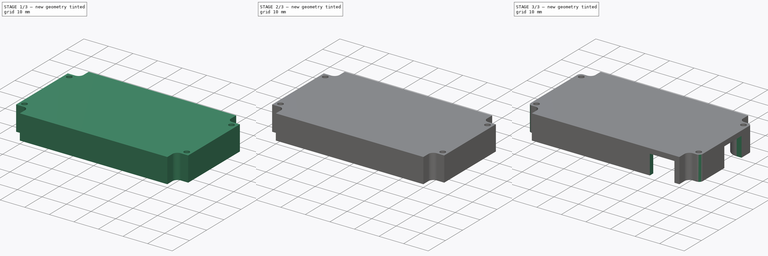
[diagram: build sequence overview — one tinted view per stage of 3, left to right]
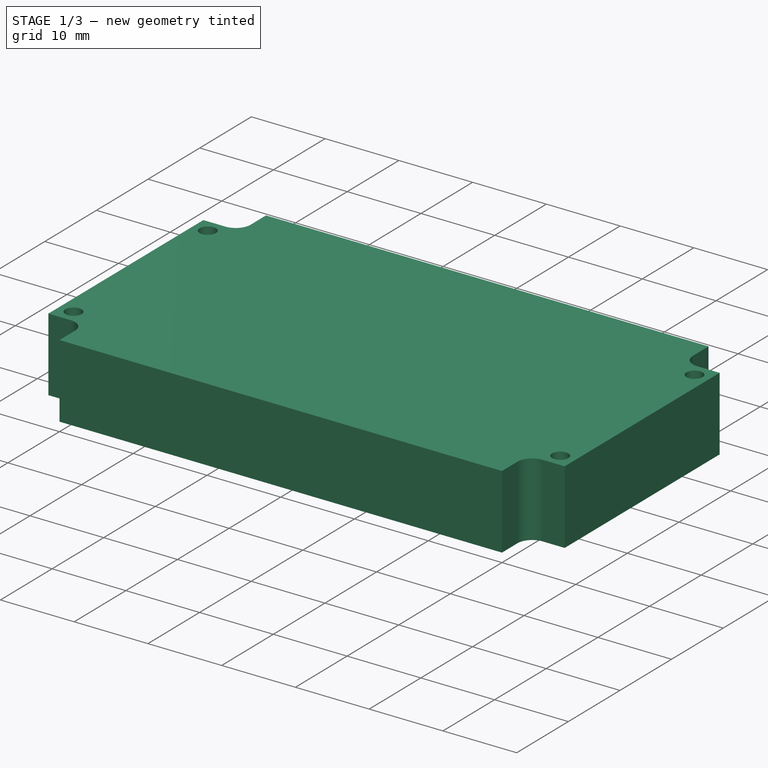
[diagram: stage 1 of 3 — iso view after this stage's code; geometry added in this stage tinted green]
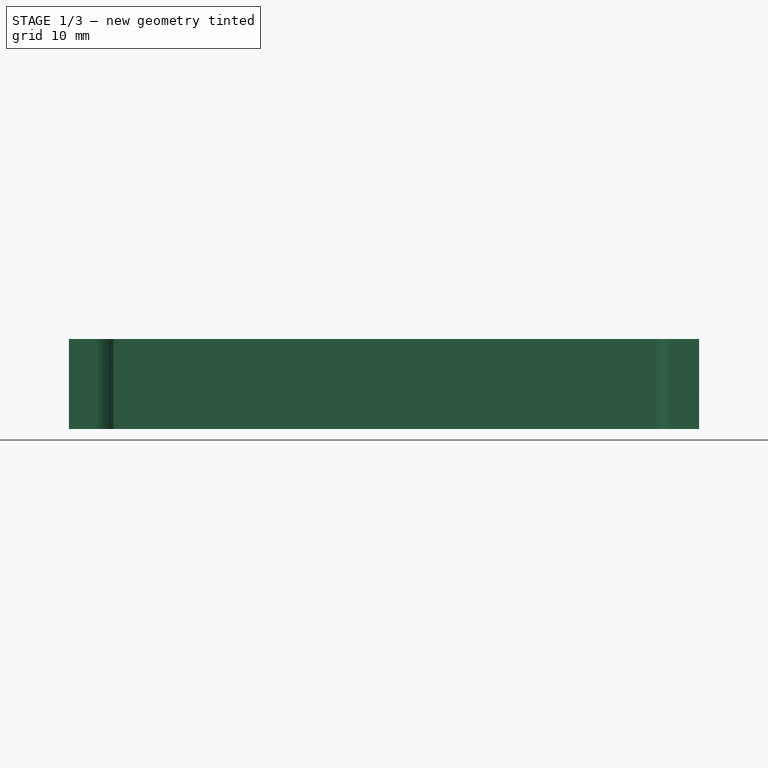
[diagram: stage 1 of 3 — front view after this stage's code; geometry added in this stage tinted green]
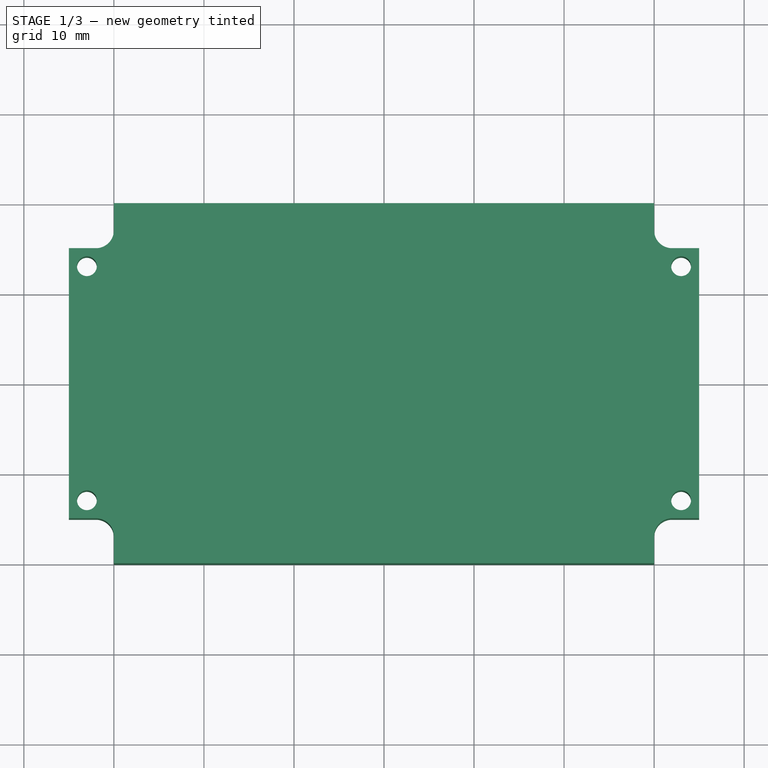
[diagram: stage 1 of 3 — top view after this stage's code; geometry added in this stage tinted green]
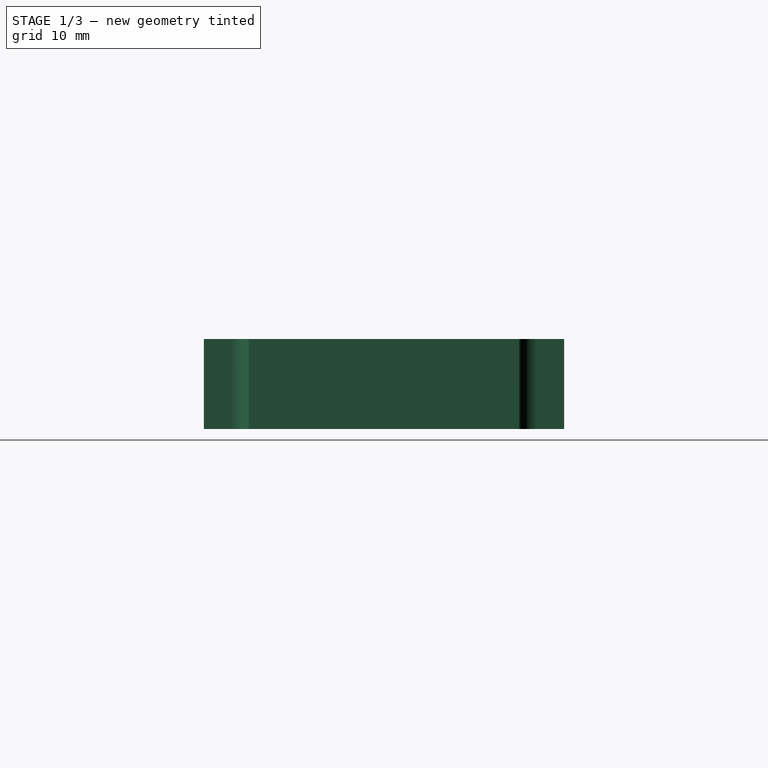
[diagram: stage 1 of 3 — right view after this stage's code; geometry added in this stage tinted green]
FCSTD DOCUMENT  (FreeCAD 0.19R)
Label: PCB-cover
License: All rights reserved
LicenseURL: http://en.wikipedia.org/wiki/All_rights_reserved
objects: Sketcher::SketchObject×4, PartDesign::Pocket×2, PartDesign::Pad×1, PartDesign::Hole×1, PartDesign::Fillet×1, PartDesign::Body×1
note: 15 computed .brp shape members not serialized (recipe doc carries the construction recipe); baked Part::Feature solids carry a one-line shape summary decoded from their .brp

FEATURE [Sketcher::SketchObject] Sketch002
  FullyConstrained = true
  MapMode = 5
  Support = -> [XY_Plane]
  sketch-geometry (8):
    g0: LineSegment StartX=-33 StartY=13 StartZ=0 EndX=33 EndY=13 EndZ=0
    g1: LineSegment StartX=33 StartY=13 StartZ=0 EndX=33 EndY=-13 EndZ=0
    g2: LineSegment StartX=33 StartY=-13 StartZ=0 EndX=-33 EndY=-13 EndZ=0
    g3: LineSegment StartX=-33 StartY=-13 StartZ=0 EndX=-33 EndY=13 EndZ=0
    g4: Circle CenterX=33 CenterY=13 CenterZ=0 NormalX=0 NormalY=0 NormalZ=1 AngleXU=0 Radius=1
    g5: Circle CenterX=33 CenterY=-13 CenterZ=0 NormalX=0 NormalY=0 NormalZ=1 AngleXU=0 Radius=1
    g6: Circle CenterX=-33 CenterY=-13 CenterZ=0 NormalX=0 NormalY=0 NormalZ=1 AngleXU=0 Radius=1
    g7: Circle CenterX=-33 CenterY=13 CenterZ=0 NormalX=0 NormalY=0 NormalZ=1 AngleXU=0 Radius=1
  constraints (18):
    c: Coincident(g0,g1)
    c: Coincident(g1,g2)
    c: Coincident(g2,g3)
    c: Coincident(g3,g0)
    c: Horizontal(g2)
    c: Vertical(g3)
    c: Symmetric(g1,g0,g-1)
    c: Symmetric(g0,g0,g-2)
    c: DistanceY(g1,g1) = 26
    c: DistanceX(g0,g0) = 66
    c: Diameter(g7) = 2
    c: Equal(g7,g6)
    c: Equal(g7,g5)
    c: Equal(g7,g4)
    c: Coincident(g7,g0)
    c: Coincident(g6,g2)
    c: Coincident(g4,g0)
    c: Coincident(g5,g1)
FEATURE [Sketcher::SketchObject] Sketch
  FullyConstrained = false
  MapMode = 5
  Support = -> [XY_Plane]
  sketch-geometry (20):
    g0: LineSegment StartX=-35 StartY=20 StartZ=0 EndX=35 EndY=20 EndZ=0
    g1: LineSegment StartX=35 StartY=20 StartZ=0 EndX=35 EndY=-20 EndZ=0
    g2: LineSegment StartX=35 StartY=-20 StartZ=0 EndX=-35 EndY=-20 EndZ=0
    g3: LineSegment StartX=-35 StartY=-20 StartZ=0 EndX=-35 EndY=20 EndZ=0
    g4: ArcOfCircle CenterX=-32 CenterY=-17 CenterZ=0 NormalX=0 NormalY=0 NormalZ=1 AngleXU=0 Radius=2 StartAngle=0 EndAngle=1.5708
    g5: ArcOfCircle CenterX=-32 CenterY=17 CenterZ=0 NormalX=0 NormalY=0 NormalZ=1 AngleXU=0 Radius=2 StartAngle=4.71239 EndAngle=6.28319
    g6: ArcOfCircle CenterX=32 CenterY=17 CenterZ=0 NormalX=0 NormalY=0 NormalZ=1 AngleXU=0 Radius=2 StartAngle=3.14159 EndAngle=4.71239
    g7: ArcOfCircle CenterX=32 CenterY=-17 CenterZ=0 NormalX=0 NormalY=0 NormalZ=1 AngleXU=0 Radius=2 StartAngle=1.5708 EndAngle=3.14159
    g8: LineSegment StartX=30 StartY=20 StartZ=0 EndX=-30 EndY=20 EndZ=0
    g9: LineSegment StartX=-30 StartY=20 StartZ=0 EndX=-30 EndY=17 EndZ=0
    g10: LineSegment StartX=30 StartY=20 StartZ=0 EndX=30 EndY=17 EndZ=0
    g11: LineSegment StartX=-30 StartY=-20 StartZ=0 EndX=30 EndY=-20 EndZ=0
    g12: LineSegment StartX=-30 StartY=-17 StartZ=0 EndX=-30 EndY=-20 EndZ=0
    g13: LineSegment StartX=30 StartY=-17 StartZ=0 EndX=30 EndY=-20 EndZ=0
    g14: LineSegment StartX=32 StartY=15 StartZ=0 EndX=35 EndY=15 EndZ=0
    g15: LineSegment StartX=35 StartY=15 StartZ=0 EndX=35 EndY=-15 EndZ=0
    g16: LineSegment StartX=32 StartY=-15 StartZ=0 EndX=35 EndY=-15 EndZ=0
    g17: LineSegment StartX=-32 StartY=15 StartZ=0 EndX=-35 EndY=15 EndZ=0
    g18: LineSegment StartX=-32 StartY=-15 StartZ=0 EndX=-35 EndY=-15 EndZ=0
    g19: LineSegment StartX=-35 StartY=15 StartZ=0 EndX=-35 EndY=-15 EndZ=0
  constraints (54):
    c: Coincident(g0,g1)
    c: Coincident(g1,g2)
    c: Coincident(g2,g3)
    c: Coincident(g3,g0)
    c: Horizontal(g2)
    c: Vertical(g3)
    c: Symmetric(g0,g1,g-1)
    c: Symmetric(g0,g0,g-2)
    c: DistanceX(g2,g2) = 70
    c: DistanceY(g3,g3) = 40
    c: Radius(g5) = 2
    c: Equal(g5,g4)
    c: Equal(g5,g7)
    c: Equal(g5,g6)
    c: Horizontal(g8)
    c: PointOnObject(g8,g0)
    c: Vertical(g9)
    c: Coincident(g8,g9)
    c: Tangent(g9,g5) = 1.5708
    c: Vertical(g10)
    c: Coincident(g10,g8)
    c: Tangent(g10,g6) = -1.5708
    c: Equal(g10,g9)
    c: DistanceY(g9,g9) = 3
    c: PointOnObject(g11,g2)
    c: Horizontal(g11)
    c: Vertical(g12)
    c: Vertical(g13)
    c: Coincident(g13,g11)
    c: Tangent(g13,g7) = -1.5708
    c: Coincident(g12,g11)
    c: Tangent(g12,g4) = 1.5708
    c: Equal(g12,g13)
    c: Equal(g13,g10)
    c: Vertical(g15)
    c: Horizontal(g14)
    c: Coincident(g14,g15)
    c: Horizontal(g16)
    c: Coincident(g16,g15)
    c: Tangent(g16,g7) = 1.5708
    c: PointOnObject(g15,g1)
    c: Horizontal(g17)
    c: Horizontal(g18)
    c: Tangent(g17,g5) = 1.5708
    c: Tangent(g18,g4) = -1.5708
    c: Vertical(g19)
    c: Coincident(g19,g17)
    c: Coincident(g18,g19)
    c: PointOnObject(g18,g3)
    c: Equal(g18,g17)
    c: Equal(g17,g14)
    c: Equal(g14,g16)
    c: Tangent(g6,g14) = -1.5708
    c: Equal(g14,g10)
FEATURE [PartDesign::Pad] Pad
  AllowMultiFace = false
  Direction = (1,1,1)
  Length = 10
  Length2 = 100
  Profile = -> Sketch
  Type = 0
FEATURE [PartDesign::Hole] Hole
  AllowMultiFace = false
  BaseFeature = -> Pad
  Depth = 25
  DepthType = 0
  Diameter = 2.2
  DrillForDepth = false
  DrillPoint = 1
  DrillPointAngle = 118
  HoleCutCountersinkAngle = 90
  HoleCutCustomValues = false
  HoleCutDepth = 0
  HoleCutDiameter = 2
  HoleCutType = 0
  ModelActualThread = false
  Profile = -> Sketch002
  Reversed = true
  Tapered = false
  TaperedAngle = 90
  ThreadAngle = 60
  ThreadClass = 0
  ThreadCutOffInner = 0.0433013
  ThreadCutOffOuter = 0.0866025
  ThreadDirection = 0
  ThreadFit = 1
  ThreadPitch = 0.4
  ThreadSize = 6
  ThreadType = 1
  Threaded = false
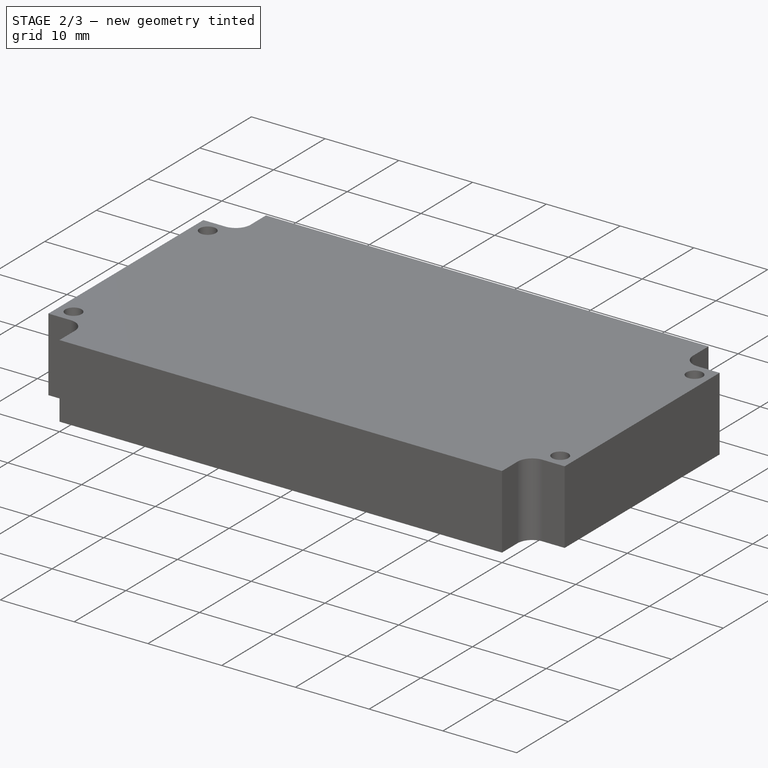
[diagram: stage 2 of 3 — iso view after this stage's code; geometry added in this stage tinted green]
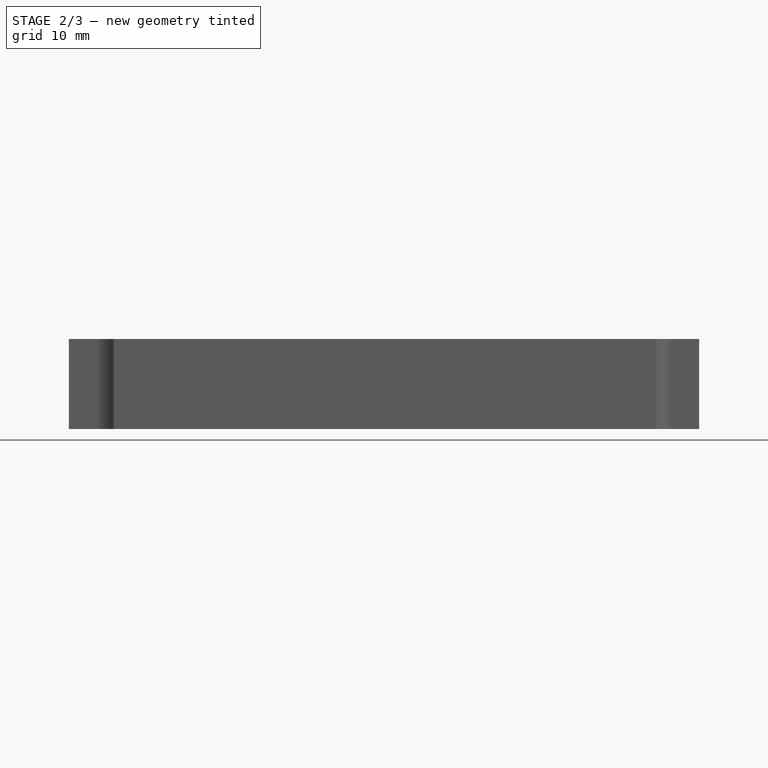
[diagram: stage 2 of 3 — front view after this stage's code; geometry added in this stage tinted green]
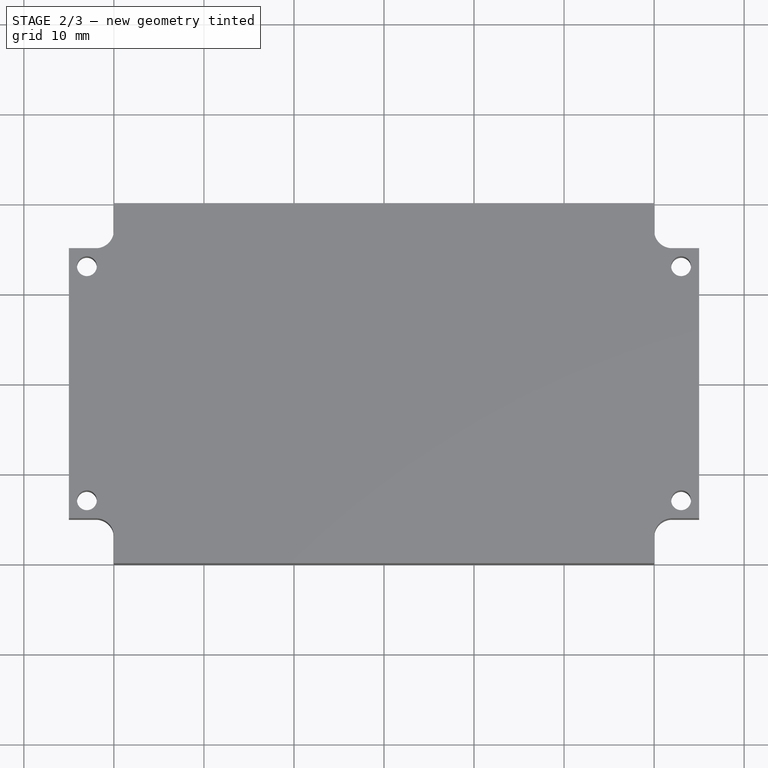
[diagram: stage 2 of 3 — top view after this stage's code; geometry added in this stage tinted green]
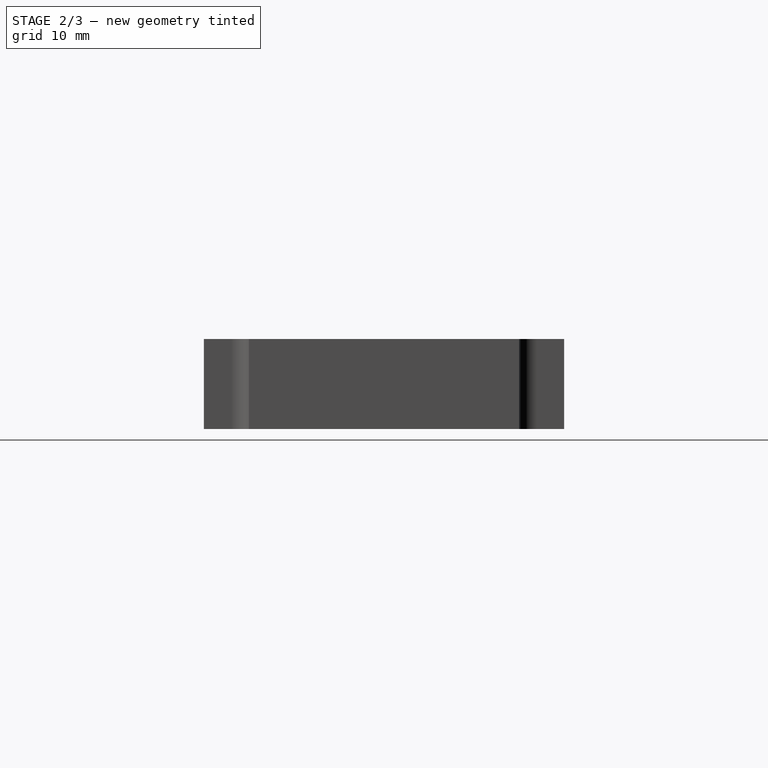
[diagram: stage 2 of 3 — right view after this stage's code; geometry added in this stage tinted green]
FEATURE [Sketcher::SketchObject] Sketch003
  FullyConstrained = true
  MapMode = 5
  Support = -> [XY_Plane]
  sketch-geometry (16):
    g0: LineSegment StartX=28 StartY=-18 StartZ=0 EndX=-28 EndY=-18 EndZ=0
    g1: LineSegment StartX=-28 StartY=-18 StartZ=0 EndX=-28 EndY=-14 EndZ=0
    g2: ArcOfCircle CenterX=-33 CenterY=-14 CenterZ=0 NormalX=0 NormalY=0 NormalZ=1 AngleXU=0 Radius=5 StartAngle=0 EndAngle=1.5708
    g3: LineSegment StartX=-33 StartY=-9 StartZ=0 EndX=-33 EndY=9 EndZ=0
    g4: ArcOfCircle CenterX=-33 CenterY=14 CenterZ=0 NormalX=0 NormalY=0 NormalZ=1 AngleXU=0 Radius=5 StartAngle=4.71239 EndAngle=6.28319
    g5: LineSegment StartX=-28 StartY=14 StartZ=0 EndX=-28 EndY=18 EndZ=0
    g6: LineSegment StartX=-28 StartY=18 StartZ=0 EndX=28 EndY=18 EndZ=0
    g7: LineSegment StartX=28 StartY=18 StartZ=0 EndX=28 EndY=14 EndZ=0
    g8: ArcOfCircle CenterX=33 CenterY=14 CenterZ=0 NormalX=0 NormalY=0 NormalZ=1 AngleXU=0 Radius=5 StartAngle=3.14159 EndAngle=4.71239
    g9: LineSegment StartX=33 StartY=9 StartZ=0 EndX=33 EndY=-9 EndZ=0
    g10: ArcOfCircle CenterX=33 CenterY=-14 CenterZ=0 NormalX=0 NormalY=0 NormalZ=1 AngleXU=0 Radius=5 StartAngle=1.5708 EndAngle=3.14159
    g11: LineSegment StartX=28 StartY=-14 StartZ=0 EndX=28 EndY=-18 EndZ=0
    g12: LineSegment StartX=-35 StartY=20 StartZ=0 EndX=35 EndY=20 EndZ=0
    g13: LineSegment StartX=35 StartY=20 StartZ=0 EndX=35 EndY=-20 EndZ=0
    g14: LineSegment StartX=35 StartY=-20 StartZ=0 EndX=-35 EndY=-20 EndZ=0
    g15: LineSegment StartX=-35 StartY=-20 StartZ=0 EndX=-35 EndY=20 EndZ=0
  constraints (44):
    c: Coincident(g0,g1)
    c: Tangent(g1,g2) = -1.5708
    c: Coincident(g2,g3)
    c: Perpendicular(g3,g4) = 4.71239
    c: Tangent(g4,g5) = -1.5708
    c: Coincident(g5,g6)
    c: Coincident(g6,g7)
    c: Tangent(g7,g8) = -1.5708
    c: Coincident(g8,g9)
    c: Perpendicular(g9,g10) = 4.71239
    c: Tangent(g10,g11) = -1.5708
    c: Coincident(g11,g0)
    c: Vertical(g11)
    c: Horizontal(g0)
    c: Vertical(g1)
    c: Vertical(g3)
    c: Vertical(g5)
    c: Horizontal(g6)
    c: Vertical(g7)
    c: Coincident(g12,g13)
    c: Coincident(g13,g14)
    c: Coincident(g14,g15)
    c: Coincident(g15,g12)
    c: Horizontal(g12)
    c: Vertical(g13)
    c: Symmetric(g13,g14,g-2)
    c: Symmetric(g14,g12,g-1)
    c: DistanceY(g15,g15) = 40
    c: DistanceX(g14,g14) = 70
    c: DistanceY(g5,g12) = 2
    c: Radius(g8) = 5
    c: Equal(g8,g4)
    c: Equal(g8,g2)
    c: Equal(g8,g10)
    c: Equal(g7,g11)
    c: Equal(g11,g5)
    c: Equal(g5,g1)
    c: DistanceY(g1,g1) = 4
    c: DistanceY(g14,g0) = 2
    c: DistanceX(g12,g3) = 2
    c: Vertical(g9)
    c: Perpendicular(g8,g9)
    c: DistanceX(g8,g12) = 2
    c: Perpendicular(g2,g3)
FEATURE [PartDesign::Pocket] Pocket001
  AllowMultiFace = false
  BaseFeature = -> Hole
  Length = 8
  Length2 = 100
  Profile = -> Sketch003
  Reversed = true
  Type = 0
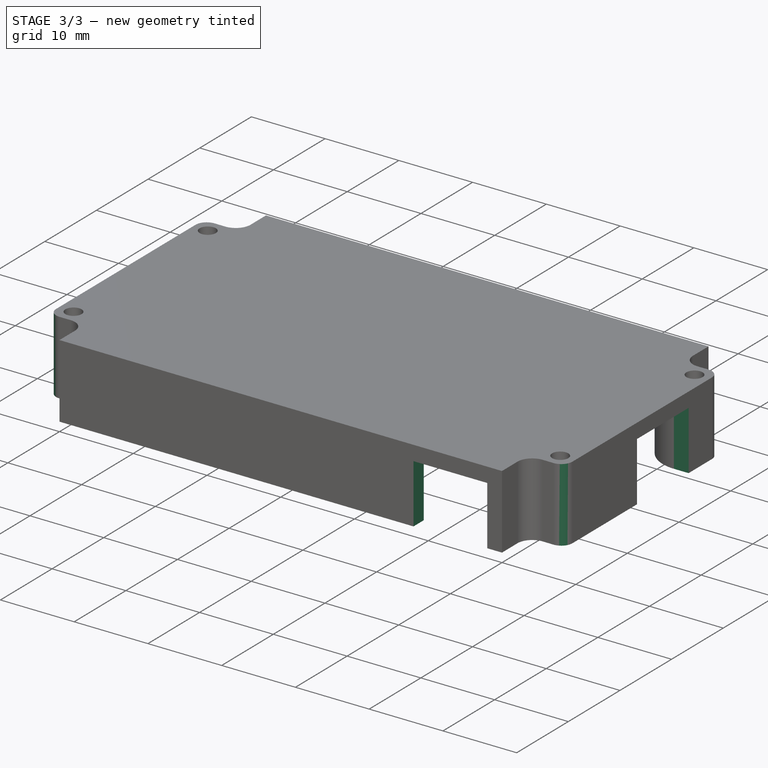
[diagram: stage 3 of 3 — iso view after this stage's code; geometry added in this stage tinted green]
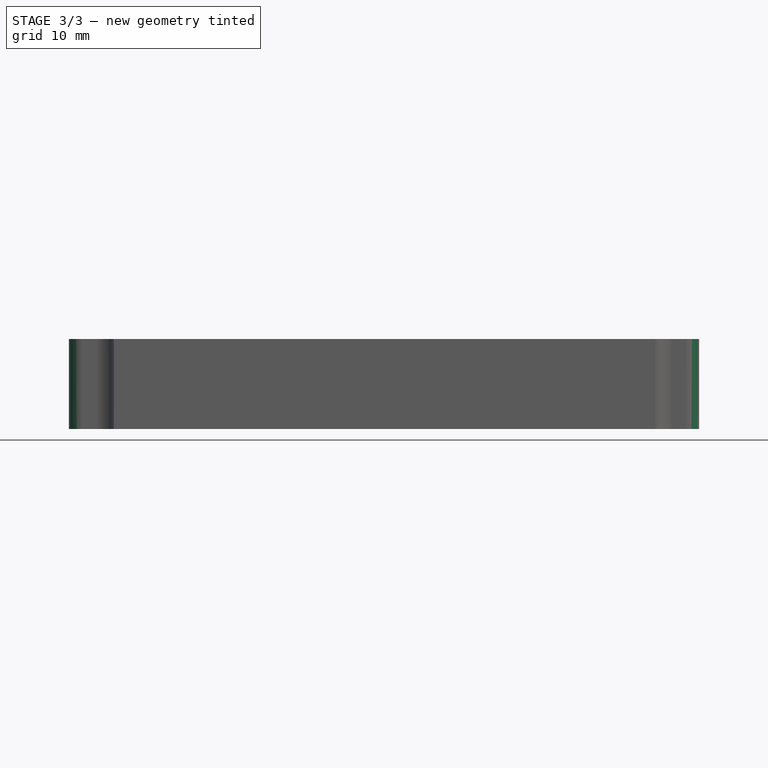
[diagram: stage 3 of 3 — front view after this stage's code; geometry added in this stage tinted green]
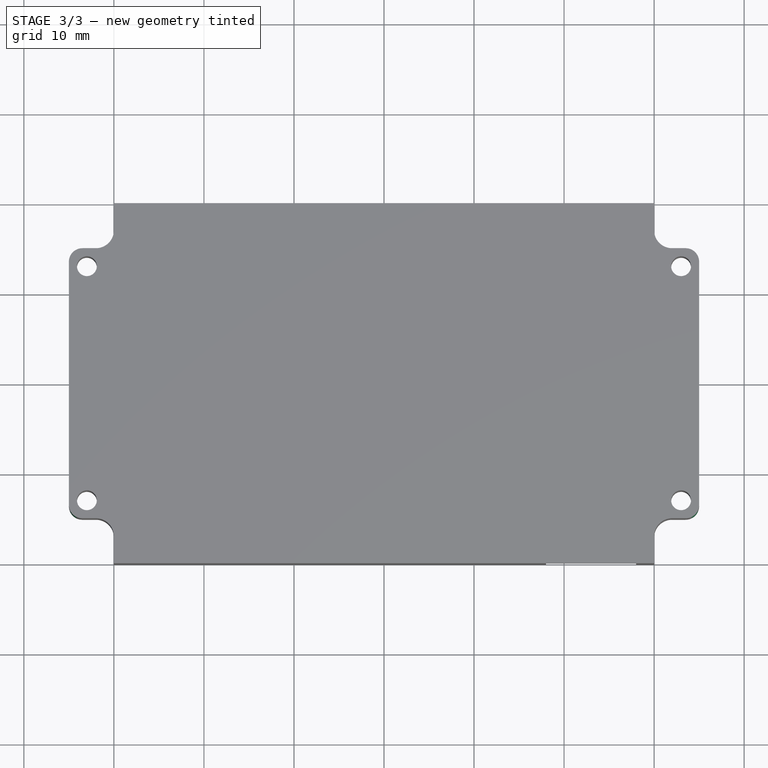
[diagram: stage 3 of 3 — top view after this stage's code; geometry added in this stage tinted green]
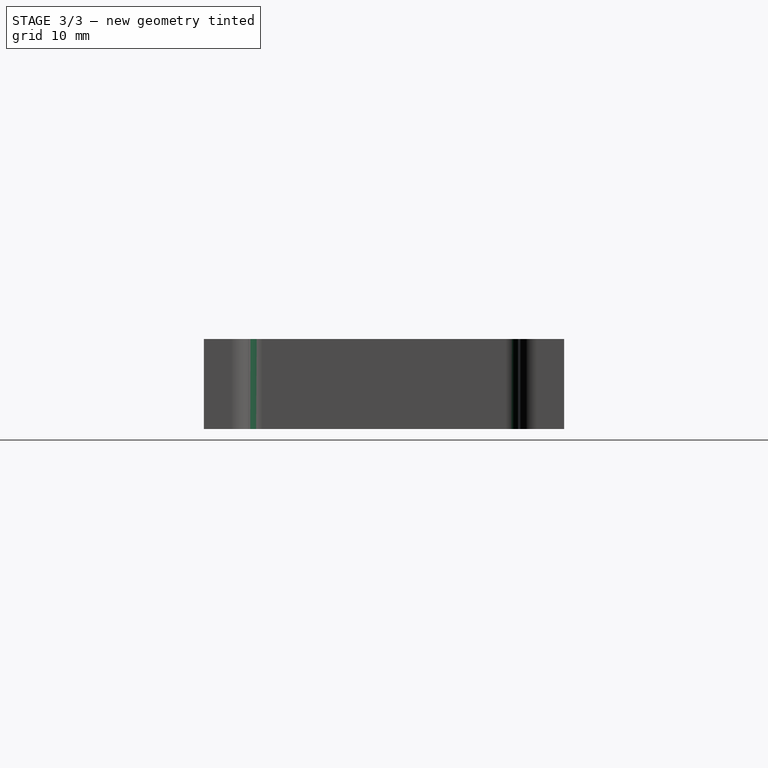
[diagram: stage 3 of 3 — right view after this stage's code; geometry added in this stage tinted green]
FEATURE [Sketcher::SketchObject] Sketch004
  FullyConstrained = true
  MapMode = 5
  Support = -> [XY_Plane]
  expr: Constraints[20] = .Constraints.horizontal
  expr: Constraints[33] = .Constraints.height
  expr: Constraints[21] = .Constraints.height
  sketch-geometry (12):
    g0: LineSegment StartX=-28 StartY=21 StartZ=0 EndX=-20 EndY=21 EndZ=0
    g1: LineSegment StartX=-20 StartY=21 StartZ=0 EndX=-20 EndY=17 EndZ=0
    g2: LineSegment StartX=-20 StartY=17 StartZ=0 EndX=-28 EndY=17 EndZ=0
    g3: LineSegment StartX=-28 StartY=17 StartZ=0 EndX=-28 EndY=21 EndZ=0
    g4: LineSegment StartX=28 StartY=-17 StartZ=0 EndX=18 EndY=-17 EndZ=0
    g5: LineSegment StartX=18 StartY=-17 StartZ=0 EndX=18 EndY=-21 EndZ=0
    g6: LineSegment StartX=18 StartY=-21 StartZ=0 EndX=28 EndY=-21 EndZ=0
    g7: LineSegment StartX=28 StartY=-21 StartZ=0 EndX=28 EndY=-17 EndZ=0
    g8: LineSegment StartX=32 StartY=9 StartZ=0 EndX=36 EndY=9 EndZ=0
    g9: LineSegment StartX=36 StartY=9 StartZ=0 EndX=36 EndY=-1 EndZ=0
    g10: LineSegment StartX=36 StartY=-1 StartZ=0 EndX=32 EndY=-1 EndZ=0
    g11: LineSegment StartX=32 StartY=-1 StartZ=0 EndX=32 EndY=9 EndZ=0
  constraints (36):
    c: Coincident(g0,g1)
    c: Coincident(g1,g2)
    c: Coincident(g2,g3)
    c: Coincident(g3,g0)
    c: Horizontal(g0)
    c: Horizontal(g2)
    c: Vertical(g1)
    c: Vertical(g3)
    c: DistanceX(g0) = -28
    c: DistanceX(g0,g0) = 8
    c: DistanceY(g-1,g1) = 17  'horizontal'
    c: DistanceY(g1,g1) = 4  'height'
    c: Coincident(g4,g5)
    c: Coincident(g5,g6)
    c: Coincident(g6,g7)
    c: Coincident(g7,g4)
    c: Horizontal(g4)
    c: Horizontal(g6)
    c: Vertical(g5)
    c: Vertical(g7)
    c: DistanceY(g4,g-1) = 17
    c: DistanceY(g5,g5) = 4
    c: DistanceX(g-1,g4) = 28
    c: DistanceX(g6,g6) = 10
    c: Coincident(g8,g9)
    c: Coincident(g9,g10)
    c: Coincident(g10,g11)
    c: Coincident(g11,g8)
    c: Horizontal(g8)
    c: Horizontal(g10)
    c: Vertical(g9)
    c: Vertical(g11)
    c: DistanceX(g-1,g8) = 32
    c: DistanceX(g8,g8) = 4
    c: DistanceY(g-1,g8) = 9
    c: DistanceY(g9,g9) = 10
FEATURE [PartDesign::Pocket] Pocket002
  AllowMultiFace = false
  BaseFeature = -> Pocket001
  Length = 8
  Length2 = 100
  Profile = -> Sketch004
  Reversed = true
  Type = 0
FEATURE [PartDesign::Fillet] Fillet
  Base = -> Pocket002 [Edge94,Edge99,Edge49,Edge90]
  BaseFeature = -> Pocket002
  Radius = 1.5
  SupportTransform = false
FEATURE [PartDesign::Body] Body
  Group = -> [Sketch,Pad,Sketch002,Hole,Sketch003,Pocket001,Sketch004,Pocket002,Fillet]
  Origin = -> Origin
  Tip = -> Fillet
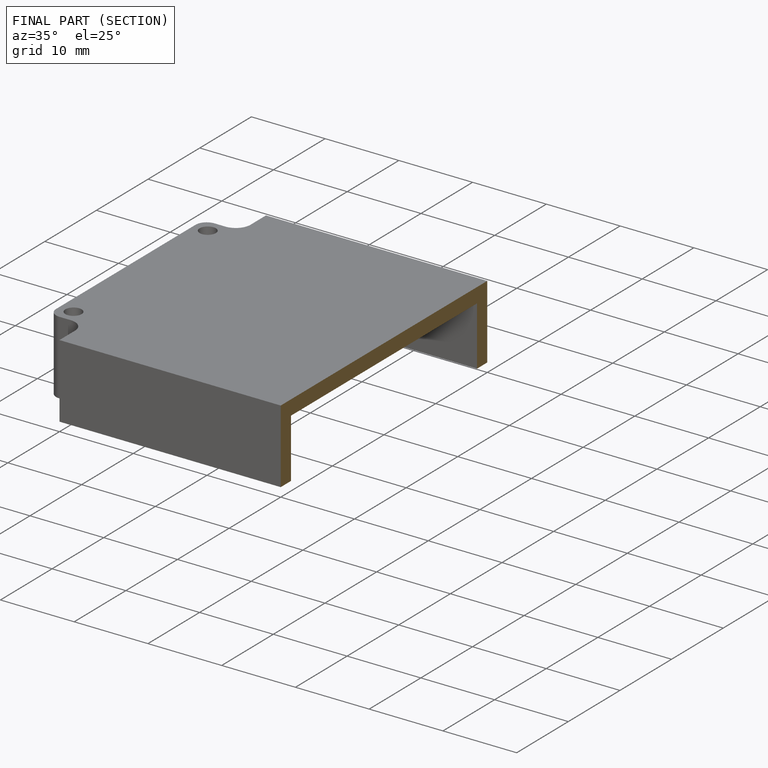
[diagram: finished part — half-section view (interior)]
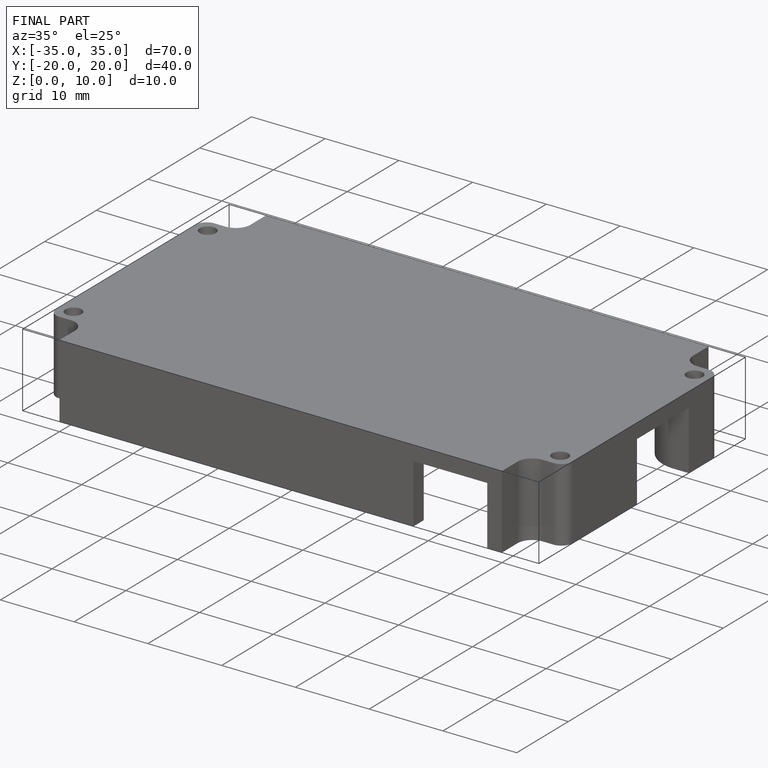
[diagram: finished part — iso view with bounding-box wireframe]
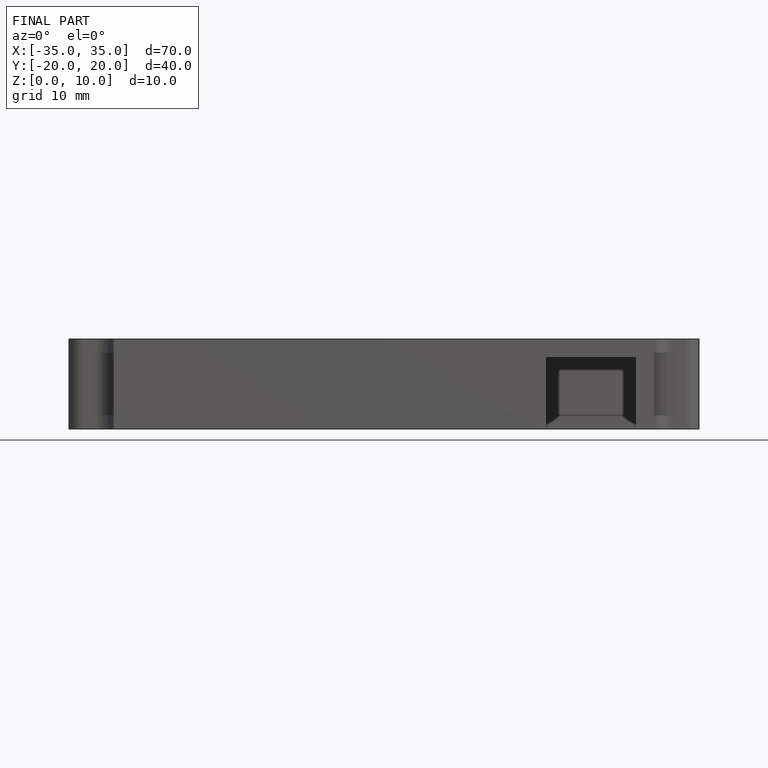
[diagram: finished part — front view with bounding-box wireframe]
